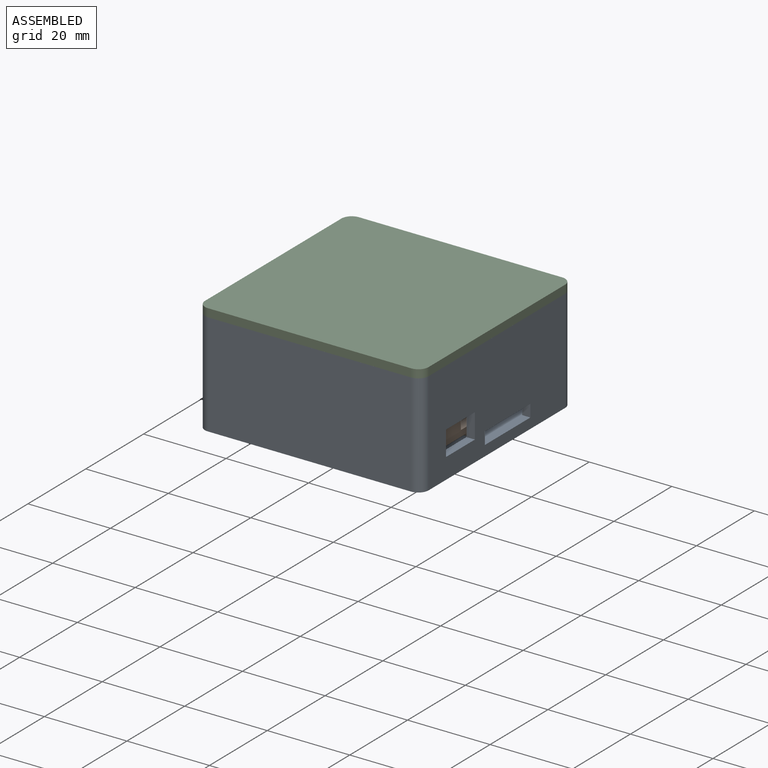
[diagram: assembled view]
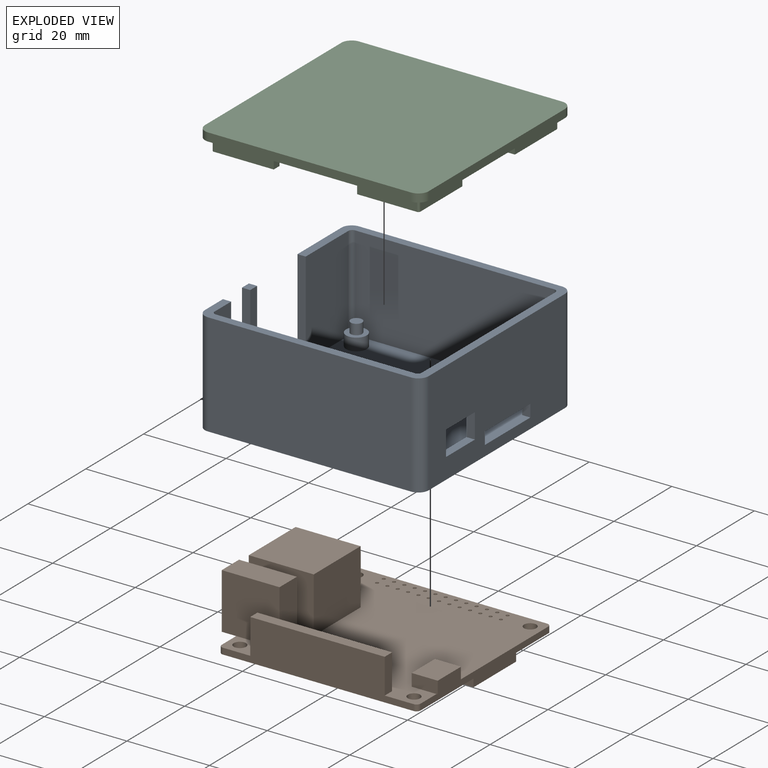
[diagram: exploded view]
GUIDED TOUR — MATED ASSEMBLY (Onshape document 6cd59e404cf89e2baeaaab60, AutoMate assembly 6cd59e404cf89e2baeaaab60_ca87b86a014a17da5134ed17_84a708cdbe08de1a9578e1f8_default)

This assembly has 3 components, labeled P0..P2 below (a component is one placed occurrence of a part; the same part can appear more than once), held together by 2 mates. A mate is a constraint between two components; its type names the relative motion it leaves free:
  FASTENED — locks the two components together rigidly (no relative motion).
Axis/direction vectors are unit vectors and 'through' points are millimeter coordinates, both in the assembly's world frame.

MATES
  1. FASTENED "Fastened 1": P1 <-> P0, direction (0.000, 0.000, -1.000) through (20.48, -18.44, -3.47) mm
  2. FASTENED "Fastened 2": P2 <-> P0, direction (0.000, 0.000, -1.000) through (-27.72, -21.94, 16.53) mm

ASSEMBLY ORDER
  1. P0 — the base component [order heuristic]
  2. P1 — core [order heuristic]
  3. P2 [order verified]
Order-tag legend:
  [order verified] — this step's position reverses a verified removal order: the component was checked to insert without passing through the ones already placed.
  [order heuristic] — the first 2 components form the assembly's core: parts whose collision-free extraction could not be verified, listed in mate-graph order.

Of the 3 components, 1 carries the full construction recipe — the FeatureScript program that regenerates the part's solid from scratch; the rest are supplied as boundary geometry only.
Each toured component is shown spotlighted twice — in the assembled view, then in the exploded view, where a leader line traces a displaced component back to its assembled socket (saturated green if recipe-attached, orange if geometry-only; every other component desaturated gray) — followed by its recipe or geometry summary and the mates that hold it.
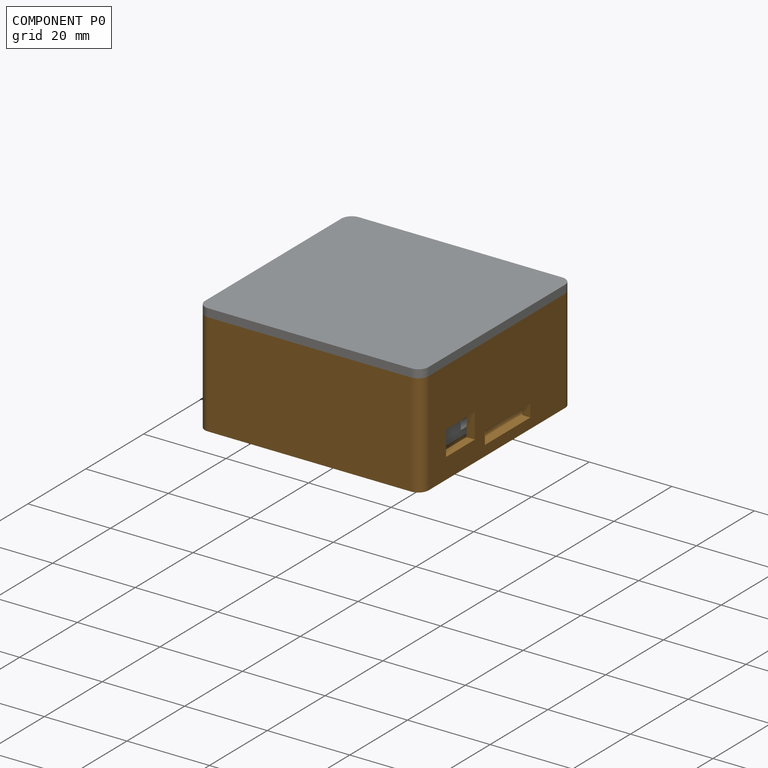
[diagram: component P0 — assembled]
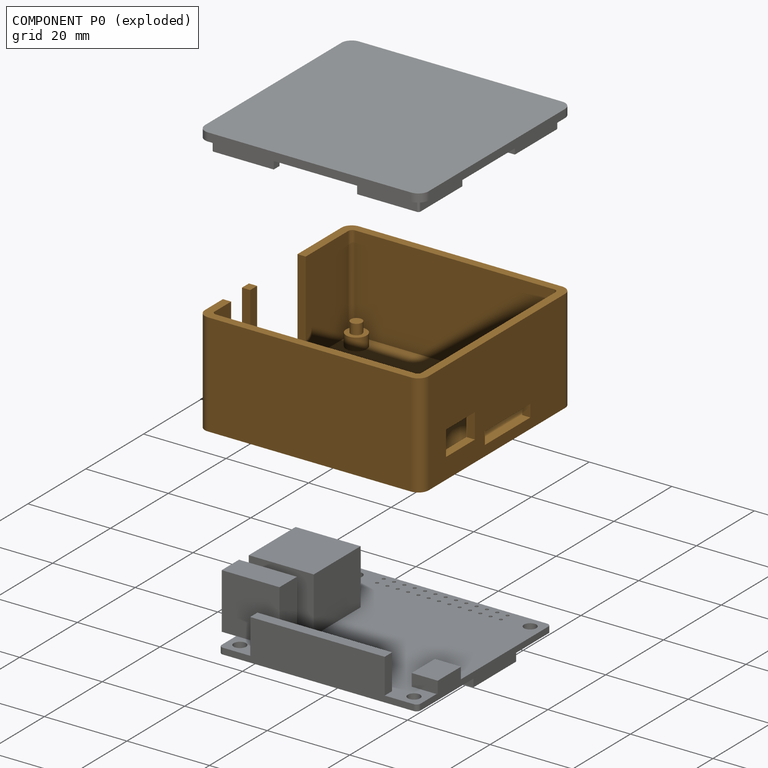
[diagram: component P0 — exploded]
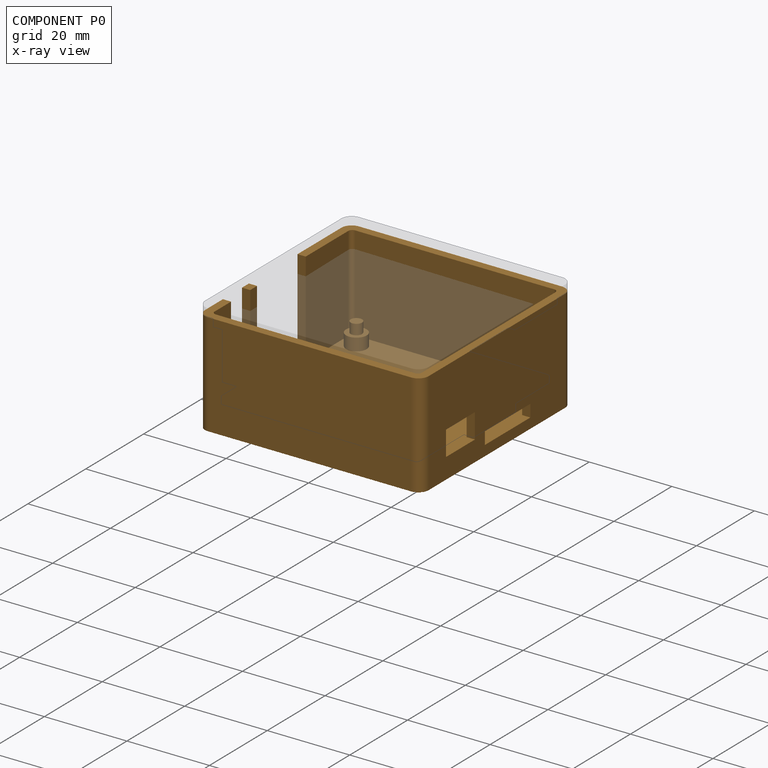
[diagram: component P0 — x-ray view]
COMPONENT P0 — geometry summary (no construction recipe available for this part):
  bounding box: 54.2 x 52.2 x 25.0 mm
  B-rep topology: 1 solid, 50 faces, 244 edges
  volume: 14109 mm^3 (20% of its bounding box)
Held by: FASTENED mate "Fastened 1" to P1; FASTENED mate "Fastened 2" to P2.
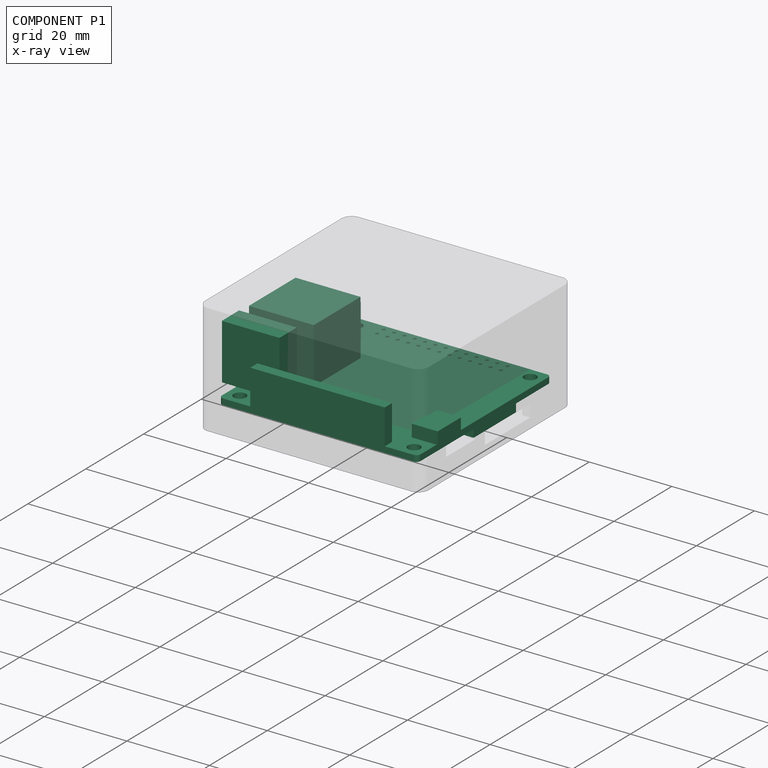
[diagram: component P1 — x-ray view]
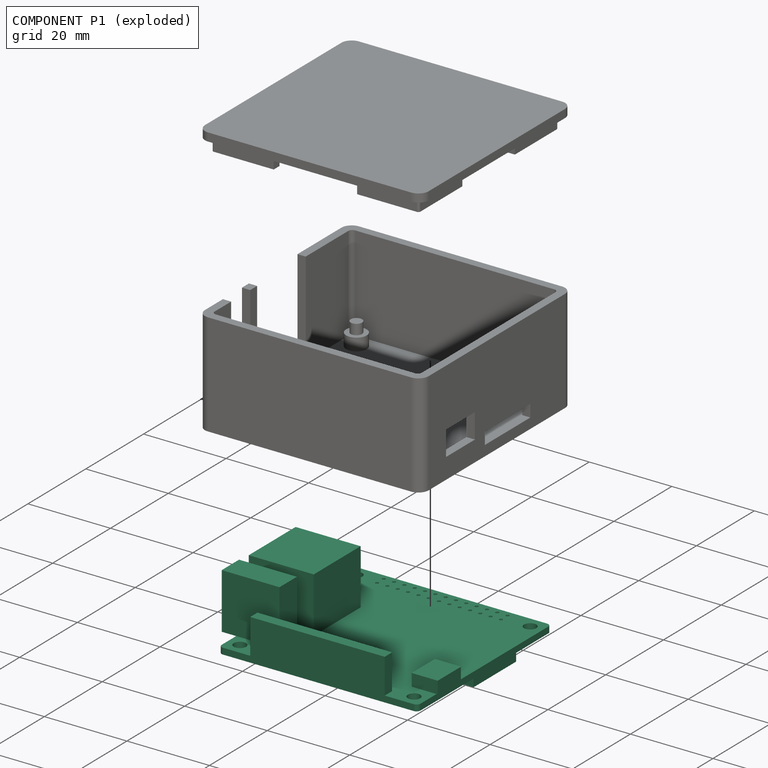
[diagram: component P1 — exploded]
COMPONENT P1 — recipe-attached (CADFS 00581589, mesh-verified: the recipe's output STEP matches this component's geometry to below the mesh-comparison resolution (tessellation chordal tolerance ~0.107 mm)).
Held by: FASTENED mate "Fastened 1" to P0.
Construction recipe (FeatureScript — the CAD program that rebuilds this solid; sketch coordinates are in the units given by the * unit suffixes, e.g. mm):

FeatureScript 1511;
import(path : "onshape/std/geometry.fs", version : "1511.0");
import(path : "onshape/std/common.fs", version : "1511.0");
const mm = millimeter;
const VERTEX = EntityType.VERTEX;
const EDGE = EntityType.EDGE;
const FACE = EntityType.FACE;
const BODY = EntityType.BODY;
function v(x, y){return vector(x, y);}
function OD(order){return orderDisambiguation(order);}
function OSD(set){return originalSetDisambiguation(set);}
function TD(topology){return topologyDisambiguation(topology);}
function TDD(query){return trueDependencyDisambiguation(query);}
function sQuery(a, b, c) {return sketchEntityQuery(a, b, c);}

annotation { "Feature Type Name" : "Feature", "Feature Type Description" : "" }
export const myFeature = defineFeature(function(context is Context, id is Id, definition is map)
    precondition{}
    {
        {
            var Q0;
            Q0=qCreatedBy(makeId("Top.planeOp"),FACE);
            var sketch = newSketch(context, id + "F0", { "sketchPlane" : qUnion([Q0])});
            skLineSegment(sketch, "E0.bottom", {"start": v(23.1, -23.1) * mm, "end": v(-23.1, -23.1) * mm});
            skLineSegment(sketch, "E0.top", {"start": v(23.1, 23.1) * mm, "end": v(-23.1, 23.1) * mm});
            skLineSegment(sketch, "E0.left", {"start": v(24.1, -22.1) * mm, "end": v(24.1, 22.1) * mm});
            skLineSegment(sketch, "E0.right", {"start": v(-24.1, -22.1) * mm, "end": v(-24.1, 22.1) * mm});
            skPoint(sketch, "E0.middle", {"position": v(0, 0) * mm});
            skPoint(sketch, "E1.visualSharp", {"position": v(-24.1, 23.1) * mm});
            skArc(sketch, "E1.filletArc", {"start": v(-23.1, 23.1) * mm, "mid": v(-23.8, 22.8) * mm, "end": v(-24.1, 22.1) * mm});
            skPoint(sketch, "E2.visualSharp", {"position": v(24.1, 23.1) * mm});
            skArc(sketch, "E2.filletArc", {"start": v(24.1, 22.1) * mm, "mid": v(23.8, 22.8) * mm, "end": v(23.1, 23.1) * mm});
            skPoint(sketch, "E3.visualSharp", {"position": v(24.1, -23.1) * mm});
            skArc(sketch, "E3.filletArc", {"start": v(23.1, -23.1) * mm, "mid": v(23.8, -22.8) * mm, "end": v(24.1, -22.1) * mm});
            skPoint(sketch, "E4.visualSharp", {"position": v(-24.1, -23.1) * mm});
            skArc(sketch, "E4.filletArc", {"start": v(-24.1, -22.1) * mm, "mid": v(-23.8, -22.8) * mm, "end": v(-23.1, -23.1) * mm});
            skCircle(sketch, "E5", {"center": v(-21.1, 20.1) * mm, "radius": 1.5 * mm});
            skCircle(sketch, "E6", {"center": v(21.1, 20.1) * mm, "radius": 1.5 * mm});
            skCircle(sketch, "E7", {"center": v(21.1, -20.1) * mm, "radius": 1.5 * mm});
            skCircle(sketch, "E8", {"center": v(-21.1, -20.1) * mm, "radius": 1.5 * mm});
            skSolve(sketch);
        }
        {
            var Q0;
            Q0=makeQuery(id+"F0.imprint","IMPRINT",FACE,{"disambiguationData":[TD([[makeQuery(id+"F0.imprint","IMPRINT",EDGE,{"derivedFrom":sQuery(id+"F0.wireOp",EDGE,"E0.bottom")}),-1.0]])]});
            extrude(context, id + "F1", {"entities" : qUnion([Q0]), "depth" : 1.5 * mm, "offsetDistance" : 25 * mm});
        }
        {
            var Q0;
            Q0=makeQuery(id+"F1.opExtrude","CAP_FACE",FACE,{"disambiguationData":[OSD([sQuery(id+"F0.wireOp",EDGE,"E0.bottom"),sQuery(id+"F0.wireOp",EDGE,"E0.top"),sQuery(id+"F0.wireOp",EDGE,"E0.left"),sQuery(id+"F0.wireOp",EDGE,"E0.right"),sQuery(id+"F0.wireOp",EDGE,"E1.filletArc"),sQuery(id+"F0.wireOp",EDGE,"E2.filletArc"),sQuery(id+"F0.wireOp",EDGE,"E3.filletArc"),sQuery(id+"F0.wireOp",EDGE,"E4.filletArc"),sQuery(id+"F0.wireOp",EDGE,"E5"),sQuery(id+"F0.wireOp",EDGE,"E6"),sQuery(id+"F0.wireOp",EDGE,"E7"),sQuery(id+"F0.wireOp",EDGE,"E8")])],"isStart":false});
            var sketch = newSketch(context, id + "F2", { "sketchPlane" : qUnion([Q0])});
            skLineSegment(sketch, "E9.bottom", {"start": v(-16.5, -23.1) * mm, "end": v(16.1, -23.1) * mm});
            skLineSegment(sketch, "E9.top", {"start": v(-16.5, -20.6) * mm, "end": v(16.1, -20.6) * mm});
            skLineSegment(sketch, "E9.left", {"start": v(-16.5, -23.1) * mm, "end": v(-16.5, -20.6) * mm});
            skLineSegment(sketch, "E9.right", {"start": v(16.1, -23.1) * mm, "end": v(16.1, -20.6) * mm});
            skSolve(sketch);
        }
        {
            var Q0;
            Q0=makeQuery(id+"F2.imprint","IMPRINT",FACE,{"disambiguationData":[TD([[makeQuery(id+"F2.imprint","IMPRINT",EDGE,{"derivedFrom":sQuery(id+"F2.wireOp",EDGE,"E9.bottom")}),-1.0]])]});
            extrude(context, id + "F3", {"entities" : qUnion([Q0]), "operationType" : NewBodyOperationType.ADD, "depth" : 8.5 * mm, "offsetDistance" : 25 * mm});
        }
        {
            var Q0;
            Q0=makeQuery(id+"F1.opExtrude","CAP_FACE",FACE,{"disambiguationData":[OSD([sQuery(id+"F0.wireOp",EDGE,"E0.bottom"),sQuery(id+"F0.wireOp",EDGE,"E0.top"),sQuery(id+"F0.wireOp",EDGE,"E0.left"),sQuery(id+"F0.wireOp",EDGE,"E0.right"),sQuery(id+"F0.wireOp",EDGE,"E1.filletArc"),sQuery(id+"F0.wireOp",EDGE,"E2.filletArc"),sQuery(id+"F0.wireOp",EDGE,"E3.filletArc"),sQuery(id+"F0.wireOp",EDGE,"E4.filletArc"),sQuery(id+"F0.wireOp",EDGE,"E5"),sQuery(id+"F0.wireOp",EDGE,"E6"),sQuery(id+"F0.wireOp",EDGE,"E7"),sQuery(id+"F0.wireOp",EDGE,"E8")])],"isStart":false});
            var sketch = newSketch(context, id + "F4", { "sketchPlane" : qUnion([Q0])});
            skLineSegment(sketch, "E10.bottom", {"start": v(24.1, -8.6) * mm, "end": v(18.1, -8.6) * mm});
            skLineSegment(sketch, "E10.top", {"start": v(24.1, -16.6) * mm, "end": v(18.1, -16.6) * mm});
            skLineSegment(sketch, "E10.left", {"start": v(24.1, -8.6) * mm, "end": v(24.1, -16.6) * mm});
            skLineSegment(sketch, "E10.right", {"start": v(18.1, -8.6) * mm, "end": v(18.1, -16.6) * mm});
            skSolve(sketch);
        }
        {
            var Q0;
            Q0=makeQuery(id+"F4.imprint","IMPRINT",FACE,{"disambiguationData":[TD([[makeQuery(id+"F4.imprint","IMPRINT",EDGE,{"derivedFrom":sQuery(id+"F4.wireOp",EDGE,"E10.bottom")}),1.0]])]});
            extrude(context, id + "F5", {"entities" : qUnion([Q0]), "operationType" : NewBodyOperationType.ADD, "depth" : 3 * mm, "offsetDistance" : 25 * mm});
        }
        {
            var Q0;
            Q0=makeQuery(id+"F5.boolean.opBoolean","MERGE",FACE,{"derivedFrom":[makeQuery(id+"F1.opExtrude","SWEPT_FACE",FACE,{"disambiguationData":[OSD([sQuery(id+"F0.wireOp",EDGE,"E0.left")])]}),makeQuery(id+"F5.opExtrude","SWEPT_FACE",FACE,{"disambiguationData":[OSD([sQuery(id+"F4.wireOp",EDGE,"E10.left")])]})]});
            var sketch = newSketch(context, id + "F6", { "sketchPlane" : qUnion([Q0])});
            skLineSegment(sketch, "E11", {"start": v(-8.6, 1.5) * mm, "end": v(-16.6, 1.5) * mm});
            skSolve(sketch);
        }
        {
            var Q0;
            Q0=makeQuery(id+"F6.imprint","IMPRINT",FACE,{"disambiguationData":[TD([[makeQuery(id+"F6.imprint","IMPRINT",EDGE,{"derivedFrom":sQuery(id+"F6.wireOp",EDGE,"E11")}),-1.0]])]});
            extrude(context, id + "F7", {"entities" : qUnion([Q0]), "operationType" : NewBodyOperationType.ADD, "depth" : 0.3 * mm, "offsetDistance" : 25 * mm});
        }
        {
            var Q0;
            Q0=makeQuery(id+"F1.opExtrude","CAP_FACE",FACE,{"disambiguationData":[OSD([sQuery(id+"F0.wireOp",EDGE,"E0.bottom"),sQuery(id+"F0.wireOp",EDGE,"E0.top"),sQuery(id+"F0.wireOp",EDGE,"E0.left"),sQuery(id+"F0.wireOp",EDGE,"E0.right"),sQuery(id+"F0.wireOp",EDGE,"E1.filletArc"),sQuery(id+"F0.wireOp",EDGE,"E2.filletArc"),sQuery(id+"F0.wireOp",EDGE,"E3.filletArc"),sQuery(id+"F0.wireOp",EDGE,"E4.filletArc"),sQuery(id+"F0.wireOp",EDGE,"E5"),sQuery(id+"F0.wireOp",EDGE,"E6"),sQuery(id+"F0.wireOp",EDGE,"E7"),sQuery(id+"F0.wireOp",EDGE,"E8")])],"isStart":false});
            var sketch = newSketch(context, id + "F8", { "sketchPlane" : qUnion([Q0])});
            skLineSegment(sketch, "E12.bottom", {"start": v(-16.4, 23.1) * mm, "end": v(16.1, 23.1) * mm});
            skLineSegment(sketch, "E12.top", {"start": v(-16.4, 18.1) * mm, "end": v(16.1, 18.1) * mm});
            skLineSegment(sketch, "E12.left", {"start": v(-16.4, 23.1) * mm, "end": v(-16.4, 18.1) * mm});
            skLineSegment(sketch, "E12.right", {"start": v(16.1, 23.1) * mm, "end": v(16.1, 18.1) * mm});
            skCircle(sketch, "E13", {"center": v(-15.5, 21.7) * mm, "radius": 0.4 * mm});
            skCircle(sketch, "E14", {"center": v(-15.5, 19.4) * mm, "radius": 0.4 * mm});
            skCircle(sketch, "E15.1.0.0", {"center": v(-13, 21.7) * mm, "radius": 0.4 * mm});
            skCircle(sketch, "E15.1.0.1", {"center": v(-13, 19.4) * mm, "radius": 0.4 * mm});
            skCircle(sketch, "E15.2.0.0", {"center": v(-10.5, 21.7) * mm, "radius": 0.4 * mm});
            skCircle(sketch, "E15.2.0.1", {"center": v(-10.5, 19.4) * mm, "radius": 0.4 * mm});
            skCircle(sketch, "E15.3.0.0", {"center": v(-8, 21.7) * mm, "radius": 0.4 * mm});
            skCircle(sketch, "E15.3.0.1", {"center": v(-8, 19.4) * mm, "radius": 0.4 * mm});
            skCircle(sketch, "E15.4.0.0", {"center": v(-5.5, 21.7) * mm, "radius": 0.4 * mm});
            skCircle(sketch, "E15.4.0.1", {"center": v(-5.5, 19.4) * mm, "radius": 0.4 * mm});
            skCircle(sketch, "E15.5.0.0", {"center": v(-3, 21.7) * mm, "radius": 0.4 * mm});
            skCircle(sketch, "E15.5.0.1", {"center": v(-3, 19.4) * mm, "radius": 0.4 * mm});
            skCircle(sketch, "E15.6.0.0", {"center": v(-0.5, 21.7) * mm, "radius": 0.4 * mm});
            skCircle(sketch, "E15.6.0.1", {"center": v(-0.5, 19.4) * mm, "radius": 0.4 * mm});
            skCircle(sketch, "E15.7.0.0", {"center": v(2, 21.7) * mm, "radius": 0.4 * mm});
            skCircle(sketch, "E15.7.0.1", {"center": v(2, 19.4) * mm, "radius": 0.4 * mm});
            skCircle(sketch, "E15.8.0.0", {"center": v(4.5, 21.7) * mm, "radius": 0.4 * mm});
            skCircle(sketch, "E15.8.0.1", {"center": v(4.5, 19.4) * mm, "radius": 0.4 * mm});
            skCircle(sketch, "E15.9.0.0", {"center": v(7, 21.7) * mm, "radius": 0.4 * mm});
            skCircle(sketch, "E15.9.0.1", {"center": v(7, 19.4) * mm, "radius": 0.4 * mm});
            skCircle(sketch, "E15.10.0.0", {"center": v(9.5, 21.7) * mm, "radius": 0.4 * mm});
            skCircle(sketch, "E15.10.0.1", {"center": v(9.5, 19.4) * mm, "radius": 0.4 * mm});
            skCircle(sketch, "E15.11.0.0", {"center": v(12, 21.7) * mm, "radius": 0.4 * mm});
            skCircle(sketch, "E15.11.0.1", {"center": v(12, 19.4) * mm, "radius": 0.4 * mm});
            skCircle(sketch, "E15.12.0.0", {"center": v(14.5, 21.7) * mm, "radius": 0.4 * mm});
            skCircle(sketch, "E15.12.0.1", {"center": v(14.5, 19.4) * mm, "radius": 0.4 * mm});
            skLineSegment(sketch, "E15.direction1", {"start": v(-15.5, 19.4) * mm, "end": v(-13, 19.4) * mm, "construction": true});
            skSolve(sketch);
        }
        {
            var Q0;
            Q0=makeQuery(id+"F8.imprint","IMPRINT",FACE,{"disambiguationData":[TD([[makeQuery(id+"F8.imprint","IMPRINT",EDGE,{"derivedFrom":sQuery(id+"F8.wireOp",EDGE,"E15.1.0.0")}),1.0]])]});
            var Q1;
            Q1=makeQuery(id+"F8.imprint","IMPRINT",FACE,{"disambiguationData":[TD([[makeQuery(id+"F8.imprint","IMPRINT",EDGE,{"derivedFrom":sQuery(id+"F8.wireOp",EDGE,"E13")}),1.0]])]});
            var Q2;
            Q2=makeQuery(id+"F8.imprint","IMPRINT",FACE,{"disambiguationData":[TD([[makeQuery(id+"F8.imprint","IMPRINT",EDGE,{"derivedFrom":sQuery(id+"F8.wireOp",EDGE,"E15.2.0.0")}),1.0]])]});
            var Q3;
            Q3=makeQuery(id+"F8.imprint","IMPRINT",FACE,{"disambiguationData":[TD([[makeQuery(id+"F8.imprint","IMPRINT",EDGE,{"derivedFrom":sQuery(id+"F8.wireOp",EDGE,"E15.3.0.0")}),1.0]])]});
            var Q4;
            Q4=makeQuery(id+"F8.imprint","IMPRINT",FACE,{"disambiguationData":[TD([[makeQuery(id+"F8.imprint","IMPRINT",EDGE,{"derivedFrom":sQuery(id+"F8.wireOp",EDGE,"E15.4.0.0")}),1.0]])]});
            var Q5;
            Q5=makeQuery(id+"F8.imprint","IMPRINT",FACE,{"disambiguationData":[TD([[makeQuery(id+"F8.imprint","IMPRINT",EDGE,{"derivedFrom":sQuery(id+"F8.wireOp",EDGE,"E15.5.0.0")}),1.0]])]});
            var Q6;
            Q6=makeQuery(id+"F8.imprint","IMPRINT",FACE,{"disambiguationData":[TD([[makeQuery(id+"F8.imprint","IMPRINT",EDGE,{"derivedFrom":sQuery(id+"F8.wireOp",EDGE,"E15.6.0.0")}),1.0]])]});
            var Q7;
            Q7=makeQuery(id+"F8.imprint","IMPRINT",FACE,{"disambiguationData":[TD([[makeQuery(id+"F8.imprint","IMPRINT",EDGE,{"derivedFrom":sQuery(id+"F8.wireOp",EDGE,"E15.7.0.0")}),1.0]])]});
            var Q8;
            Q8=makeQuery(id+"F8.imprint","IMPRINT",FACE,{"disambiguationData":[TD([[makeQuery(id+"F8.imprint","IMPRINT",EDGE,{"derivedFrom":sQuery(id+"F8.wireOp",EDGE,"E15.8.0.0")}),1.0]])]});
            var Q9;
            Q9=makeQuery(id+"F8.imprint","IMPRINT",FACE,{"disambiguationData":[TD([[makeQuery(id+"F8.imprint","IMPRINT",EDGE,{"derivedFrom":sQuery(id+"F8.wireOp",EDGE,"E15.9.0.0")}),1.0]])]});
            var Q10;
            Q10=makeQuery(id+"F8.imprint","IMPRINT",FACE,{"disambiguationData":[TD([[makeQuery(id+"F8.imprint","IMPRINT",EDGE,{"derivedFrom":sQuery(id+"F8.wireOp",EDGE,"E15.10.0.0")}),1.0]])]});
            var Q11;
            Q11=makeQuery(id+"F8.imprint","IMPRINT",FACE,{"disambiguationData":[TD([[makeQuery(id+"F8.imprint","IMPRINT",EDGE,{"derivedFrom":sQuery(id+"F8.wireOp",EDGE,"E15.11.0.0")}),1.0]])]});
            var Q12;
            Q12=makeQuery(id+"F8.imprint","IMPRINT",FACE,{"disambiguationData":[TD([[makeQuery(id+"F8.imprint","IMPRINT",EDGE,{"derivedFrom":sQuery(id+"F8.wireOp",EDGE,"E15.12.0.0")}),1.0]])]});
            var Q13;
            Q13=makeQuery(id+"F8.imprint","IMPRINT",FACE,{"disambiguationData":[TD([[makeQuery(id+"F8.imprint","IMPRINT",EDGE,{"derivedFrom":sQuery(id+"F8.wireOp",EDGE,"E15.12.0.1")}),1.0]])]});
            var Q14;
            Q14=makeQuery(id+"F8.imprint","IMPRINT",FACE,{"disambiguationData":[TD([[makeQuery(id+"F8.imprint","IMPRINT",EDGE,{"derivedFrom":sQuery(id+"F8.wireOp",EDGE,"E15.11.0.1")}),1.0]])]});
            var Q15;
            Q15=makeQuery(id+"F8.imprint","IMPRINT",FACE,{"disambiguationData":[TD([[makeQuery(id+"F8.imprint","IMPRINT",EDGE,{"derivedFrom":sQuery(id+"F8.wireOp",EDGE,"E15.10.0.1")}),1.0]])]});
            var Q16;
            Q16=makeQuery(id+"F8.imprint","IMPRINT",FACE,{"disambiguationData":[TD([[makeQuery(id+"F8.imprint","IMPRINT",EDGE,{"derivedFrom":sQuery(id+"F8.wireOp",EDGE,"E15.9.0.1")}),1.0]])]});
            var Q17;
            Q17=makeQuery(id+"F8.imprint","IMPRINT",FACE,{"disambiguationData":[TD([[makeQuery(id+"F8.imprint","IMPRINT",EDGE,{"derivedFrom":sQuery(id+"F8.wireOp",EDGE,"E15.8.0.1")}),1.0]])]});
            var Q18;
            Q18=makeQuery(id+"F8.imprint","IMPRINT",FACE,{"disambiguationData":[TD([[makeQuery(id+"F8.imprint","IMPRINT",EDGE,{"derivedFrom":sQuery(id+"F8.wireOp",EDGE,"E15.7.0.1")}),1.0]])]});
            var Q19;
            Q19=makeQuery(id+"F8.imprint","IMPRINT",FACE,{"disambiguationData":[TD([[makeQuery(id+"F8.imprint","IMPRINT",EDGE,{"derivedFrom":sQuery(id+"F8.wireOp",EDGE,"E15.6.0.1")}),1.0]])]});
            var Q20;
            Q20=makeQuery(id+"F8.imprint","IMPRINT",FACE,{"disambiguationData":[TD([[makeQuery(id+"F8.imprint","IMPRINT",EDGE,{"derivedFrom":sQuery(id+"F8.wireOp",EDGE,"E15.5.0.1")}),1.0]])]});
            var Q21;
            Q21=makeQuery(id+"F8.imprint","IMPRINT",FACE,{"disambiguationData":[TD([[makeQuery(id+"F8.imprint","IMPRINT",EDGE,{"derivedFrom":sQuery(id+"F8.wireOp",EDGE,"E15.4.0.1")}),1.0]])]});
            var Q22;
            Q22=makeQuery(id+"F8.imprint","IMPRINT",FACE,{"disambiguationData":[TD([[makeQuery(id+"F8.imprint","IMPRINT",EDGE,{"derivedFrom":sQuery(id+"F8.wireOp",EDGE,"E15.3.0.1")}),1.0]])]});
            var Q23;
            Q23=makeQuery(id+"F8.imprint","IMPRINT",FACE,{"disambiguationData":[TD([[makeQuery(id+"F8.imprint","IMPRINT",EDGE,{"derivedFrom":sQuery(id+"F8.wireOp",EDGE,"E15.2.0.1")}),1.0]])]});
            var Q24;
            Q24=makeQuery(id+"F8.imprint","IMPRINT",FACE,{"disambiguationData":[TD([[makeQuery(id+"F8.imprint","IMPRINT",EDGE,{"derivedFrom":sQuery(id+"F8.wireOp",EDGE,"E15.1.0.1")}),1.0]])]});
            var Q25;
            Q25=makeQuery(id+"F8.imprint","IMPRINT",FACE,{"disambiguationData":[TD([[makeQuery(id+"F8.imprint","IMPRINT",EDGE,{"derivedFrom":sQuery(id+"F8.wireOp",EDGE,"E14")}),1.0]])]});
            extrude(context, id + "F9", {"entities" : qUnion([Q0, Q1, Q2, Q3, Q4, Q5, Q6, Q7, Q8, Q9, Q10, Q11, Q12, Q13, Q14, Q15, Q16, Q17, Q18, Q19, Q20, Q21, Q22, Q23, Q24, Q25]), "operationType" : NewBodyOperationType.REMOVE, "endBound" : BoundingType.UP_TO_NEXT, "oppositeDirection" : true, "depth" : 25 * mm, "offsetDistance" : 25 * mm});
        }
        {
            var Q0;
            Q0=makeQuery(id+"F1.opExtrude","CAP_FACE",FACE,{"disambiguationData":[OSD([sQuery(id+"F0.wireOp",EDGE,"E0.bottom"),sQuery(id+"F0.wireOp",EDGE,"E0.top"),sQuery(id+"F0.wireOp",EDGE,"E0.left"),sQuery(id+"F0.wireOp",EDGE,"E0.right"),sQuery(id+"F0.wireOp",EDGE,"E1.filletArc"),sQuery(id+"F0.wireOp",EDGE,"E2.filletArc"),sQuery(id+"F0.wireOp",EDGE,"E3.filletArc"),sQuery(id+"F0.wireOp",EDGE,"E4.filletArc"),sQuery(id+"F0.wireOp",EDGE,"E5"),sQuery(id+"F0.wireOp",EDGE,"E6"),sQuery(id+"F0.wireOp",EDGE,"E7"),sQuery(id+"F0.wireOp",EDGE,"E8")])],"isStart":false});
            var sketch = newSketch(context, id + "F10", { "sketchPlane" : qUnion([Q0])});
            skLineSegment(sketch, "E16.bottom", {"start": v(-24.1, 14.6) * mm, "end": v(-16.1, 14.6) * mm});
            skLineSegment(sketch, "E16.top", {"start": v(-24.1, 12.1) * mm, "end": v(-16.1, 12.1) * mm});
            skLineSegment(sketch, "E16.left", {"start": v(-24.1, 14.6) * mm, "end": v(-24.1, 12.1) * mm});
            skLineSegment(sketch, "E16.right", {"start": v(-16.1, 14.6) * mm, "end": v(-16.1, 12.1) * mm});
            skSolve(sketch);
        }
        {
            var Q0;
            Q0 = qSketchRegion(id + "F10", true);
            extrude(context, id + "F11", {"entities" : qUnion([Q0]), "operationType" : NewBodyOperationType.ADD, "depth" : 8.5 * mm, "offsetDistance" : 25 * mm});
        }
        {
            var Q0;
            Q0=makeQuery(id+"F1.opExtrude","CAP_FACE",FACE,{"disambiguationData":[OSD([sQuery(id+"F0.wireOp",EDGE,"E0.bottom"),sQuery(id+"F0.wireOp",EDGE,"E0.top"),sQuery(id+"F0.wireOp",EDGE,"E0.left"),sQuery(id+"F0.wireOp",EDGE,"E0.right"),sQuery(id+"F0.wireOp",EDGE,"E1.filletArc"),sQuery(id+"F0.wireOp",EDGE,"E2.filletArc"),sQuery(id+"F0.wireOp",EDGE,"E3.filletArc"),sQuery(id+"F0.wireOp",EDGE,"E4.filletArc"),sQuery(id+"F0.wireOp",EDGE,"E5"),sQuery(id+"F0.wireOp",EDGE,"E6"),sQuery(id+"F0.wireOp",EDGE,"E7"),sQuery(id+"F0.wireOp",EDGE,"E8")])],"isStart":false});
            var sketch = newSketch(context, id + "F12", { "sketchPlane" : qUnion([Q0])});
            skLineSegment(sketch, "E17.bottom", {"start": v(-27.35, 8.1) * mm, "end": v(-11.6, 8.1) * mm});
            skLineSegment(sketch, "E17.top", {"start": v(-27.35, -8.1) * mm, "end": v(-11.6, -8.1) * mm});
            skLineSegment(sketch, "E17.left", {"start": v(-27.35, 8.1) * mm, "end": v(-27.35, -8.1) * mm});
            skLineSegment(sketch, "E17.right", {"start": v(-11.6, 8.1) * mm, "end": v(-11.6, -8.1) * mm});
            skSolve(sketch);
        }
        {
            var Q0;
            {var subQ0=sQuery(id+"F12.wireOp",EDGE,"E17.left");Q0=makeQuery(id+"F12.imprint","IMPRINT",FACE,{"disambiguationData":[TD([[makeQuery(id+"F12.imprint","IMPRINT",EDGE,{"derivedFrom":subQ0}),1.0]])]});}
            var Q1;
            {var subQ0=sQuery(id+"F12.wireOp",EDGE,"E17.right");Q1=makeQuery(id+"F12.imprint","IMPRINT",FACE,{"disambiguationData":[TD([[makeQuery(id+"F12.imprint","IMPRINT",EDGE,{"derivedFrom":subQ0}),-1.0]])]});}
            extrude(context, id + "F13", {"entities" : qUnion([Q0, Q1]), "operationType" : NewBodyOperationType.ADD, "depth" : 13.4 * mm, "offsetDistance" : 25 * mm});
        }
        {
            var Q0;
            Q0=makeQuery(id+"F1.opExtrude","CAP_FACE",FACE,{"disambiguationData":[OSD([sQuery(id+"F0.wireOp",EDGE,"E0.bottom"),sQuery(id+"F0.wireOp",EDGE,"E0.top"),sQuery(id+"F0.wireOp",EDGE,"E0.left"),sQuery(id+"F0.wireOp",EDGE,"E0.right"),sQuery(id+"F0.wireOp",EDGE,"E1.filletArc"),sQuery(id+"F0.wireOp",EDGE,"E2.filletArc"),sQuery(id+"F0.wireOp",EDGE,"E3.filletArc"),sQuery(id+"F0.wireOp",EDGE,"E4.filletArc"),sQuery(id+"F0.wireOp",EDGE,"E5"),sQuery(id+"F0.wireOp",EDGE,"E6"),sQuery(id+"F0.wireOp",EDGE,"E7"),sQuery(id+"F0.wireOp",EDGE,"E8")])],"isStart":false});
            var sketch = newSketch(context, id + "F14", { "sketchPlane" : qUnion([Q0])});
            skLineSegment(sketch, "E18.bottom", {"start": v(-13.6, -11.1) * mm, "end": v(-27.6, -11.1) * mm});
            skLineSegment(sketch, "E18.top", {"start": v(-13.6, -17.1) * mm, "end": v(-27.6, -17.1) * mm});
            skLineSegment(sketch, "E18.left", {"start": v(-13.6, -11.1) * mm, "end": v(-13.6, -17.1) * mm});
            skLineSegment(sketch, "E18.right", {"start": v(-27.6, -11.1) * mm, "end": v(-27.6, -17.1) * mm});
            skSolve(sketch);
        }
        {
            var Q0;
            {var subQ0=sQuery(id+"F14.wireOp",EDGE,"E18.right");Q0=makeQuery(id+"F14.imprint","IMPRINT",FACE,{"disambiguationData":[TD([[makeQuery(id+"F14.imprint","IMPRINT",EDGE,{"derivedFrom":subQ0}),1.0]])]});}
            var Q1;
            {var subQ0=sQuery(id+"F14.wireOp",EDGE,"E18.left");Q1=makeQuery(id+"F14.imprint","IMPRINT",FACE,{"disambiguationData":[TD([[makeQuery(id+"F14.imprint","IMPRINT",EDGE,{"derivedFrom":subQ0}),-1.0]])]});}
            extrude(context, id + "F15", {"entities" : qUnion([Q0, Q1]), "operationType" : NewBodyOperationType.ADD, "depth" : 13.5 * mm, "offsetDistance" : 25 * mm});
        }
        {
            var Q0;
            Q0=makeQuery(id+"F1.opExtrude","CAP_FACE",FACE,{"disambiguationData":[OSD([sQuery(id+"F0.wireOp",EDGE,"E0.bottom"),sQuery(id+"F0.wireOp",EDGE,"E0.top"),sQuery(id+"F0.wireOp",EDGE,"E0.left"),sQuery(id+"F0.wireOp",EDGE,"E0.right"),sQuery(id+"F0.wireOp",EDGE,"E1.filletArc"),sQuery(id+"F0.wireOp",EDGE,"E2.filletArc"),sQuery(id+"F0.wireOp",EDGE,"E3.filletArc"),sQuery(id+"F0.wireOp",EDGE,"E4.filletArc"),sQuery(id+"F0.wireOp",EDGE,"E5"),sQuery(id+"F0.wireOp",EDGE,"E6"),sQuery(id+"F0.wireOp",EDGE,"E7"),sQuery(id+"F0.wireOp",EDGE,"E8")])],"isStart":true});
            var sketch = newSketch(context, id + "F16", { "sketchPlane" : qUnion([Q0])});
            skLineSegment(sketch, "E19.bottom", {"start": v(9.5, 3.65) * mm, "end": v(24.1, 3.65) * mm});
            skLineSegment(sketch, "E19.top", {"start": v(9.5, -11.1) * mm, "end": v(24.1, -11.1) * mm});
            skLineSegment(sketch, "E19.left", {"start": v(9.5, 3.65) * mm, "end": v(9.5, -11.1) * mm});
            skLineSegment(sketch, "E19.right", {"start": v(24.1, 3.65) * mm, "end": v(24.1, -11.1) * mm});
            skSolve(sketch);
        }
        {
            var Q0;
            Q0=makeQuery(id+"F16.imprint","IMPRINT",FACE,{"disambiguationData":[TD([[makeQuery(id+"F16.imprint","IMPRINT",EDGE,{"derivedFrom":sQuery(id+"F16.wireOp",EDGE,"E19.bottom")}),-1.0]])]});
            extrude(context, id + "F17", {"entities" : qUnion([Q0]), "operationType" : NewBodyOperationType.ADD, "depth" : 2 * mm, "offsetDistance" : 25 * mm});
        }
        {
            var Q0;
            Q0=makeQuery(id+"F17.boolean.opBoolean","MERGE",FACE,{"derivedFrom":[makeQuery(id+"F5.boolean.opBoolean","MERGE",FACE,{"derivedFrom":[makeQuery(id+"F1.opExtrude","SWEPT_FACE",FACE,{"disambiguationData":[OSD([sQuery(id+"F0.wireOp",EDGE,"E0.left")])]}),makeQuery(id+"F5.opExtrude","SWEPT_FACE",FACE,{"disambiguationData":[OSD([sQuery(id+"F4.wireOp",EDGE,"E10.left")])]})]}),makeQuery(id+"F17.opExtrude","SWEPT_FACE",FACE,{"disambiguationData":[OSD([sQuery(id+"F16.wireOp",EDGE,"E19.right")])]})]});
            var sketch = newSketch(context, id + "F18", { "sketchPlane" : qUnion([Q0])});
            skLineSegment(sketch, "E20", {"start": v(-3.65, 0) * mm, "end": v(11.1, 0) * mm});
            skSolve(sketch);
        }
        {
            var Q0;
            Q0=makeQuery(id+"F18.imprint","IMPRINT",FACE,{"disambiguationData":[TD([[makeQuery(id+"F18.imprint","IMPRINT",EDGE,{"derivedFrom":sQuery(id+"F18.wireOp",EDGE,"E20")}),-1.0]])]});
            extrude(context, id + "F19", {"entities" : qUnion([Q0]), "operationType" : NewBodyOperationType.REMOVE, "oppositeDirection" : true, "depth" : 0.1 * mm, "offsetDistance" : 25 * mm});
        }
    });
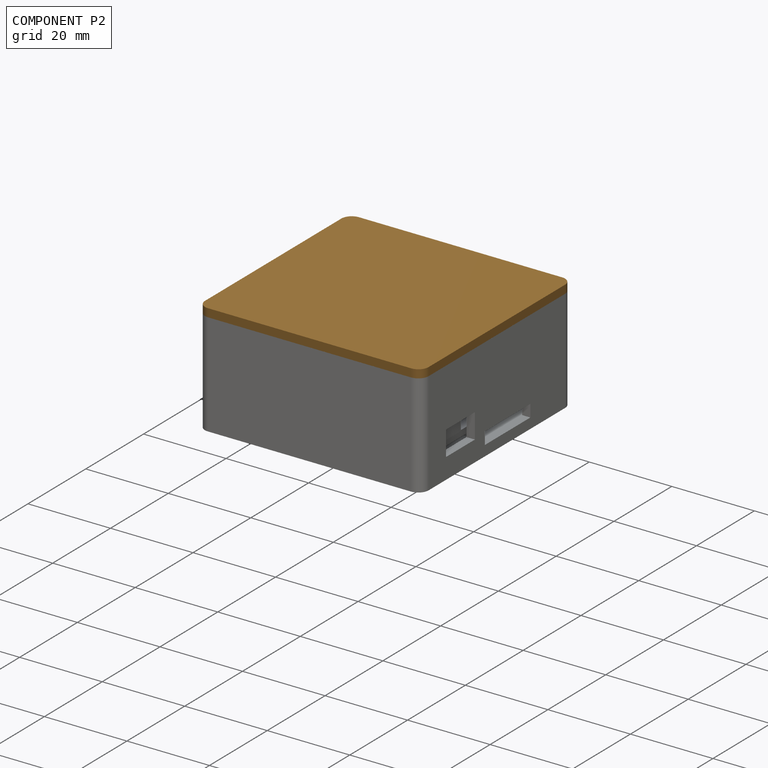
[diagram: component P2 — assembled]
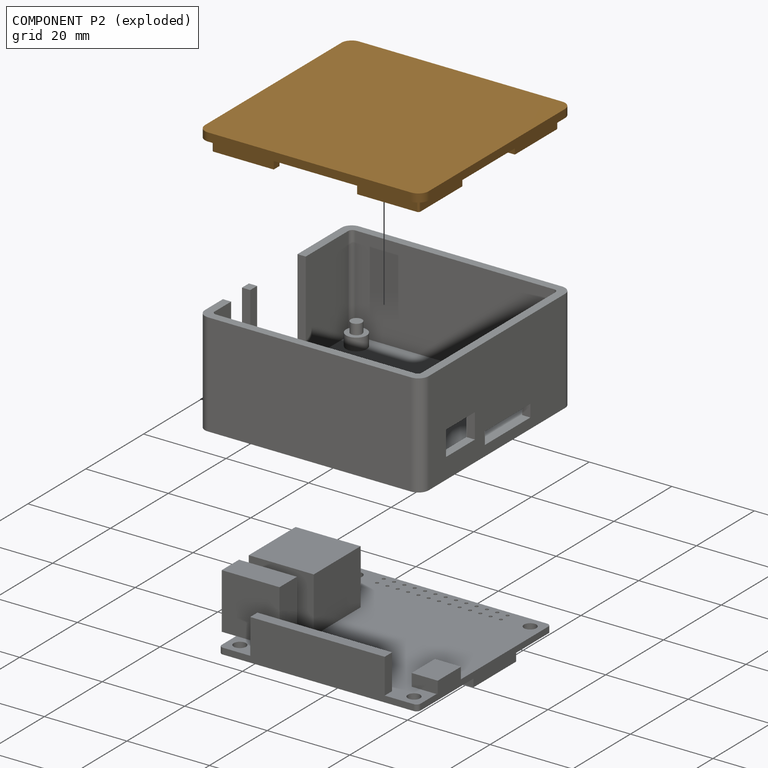
[diagram: component P2 — exploded]
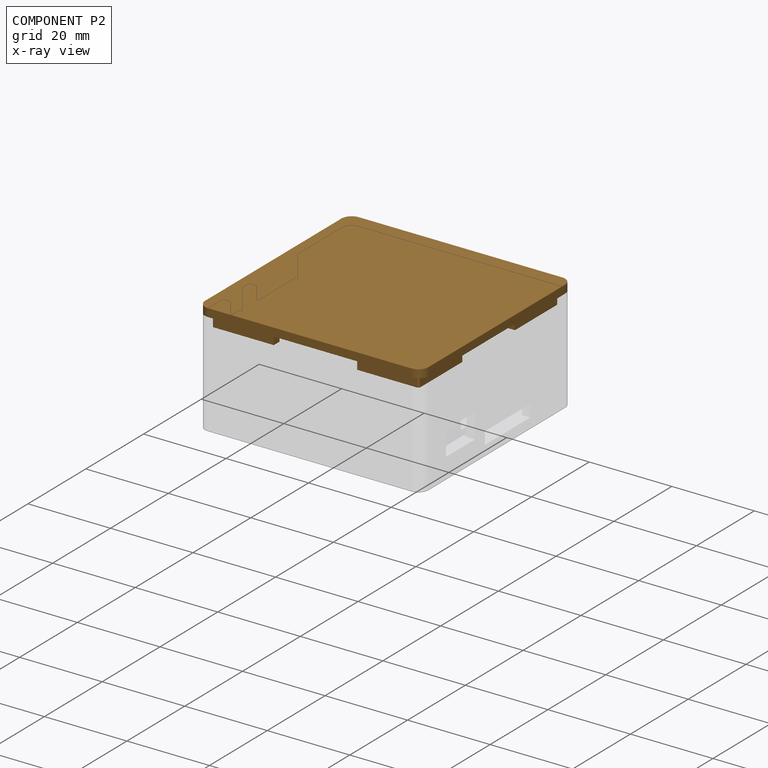
[diagram: component P2 — x-ray view]
COMPONENT P2 — geometry summary (no construction recipe available for this part):
  bounding box: 54.2 x 52.2 x 5.0 mm
  B-rep topology: 1 solid, 40 faces, 216 edges
  volume: 6580 mm^3 (47% of its bounding box)
Held by: FASTENED mate "Fastened 2" to P0.
PROVENANCE & LICENSES
Assembly (occurrences, transforms, mates, per-part STEP geometry): AutoMate dataset, Zenodo record 7776208, CC0.
Construction recipes: CADFS (HuggingFace VladPyatov/CADFS, CC-BY-4.0, layered over the ABC dataset), FeatureScript reconstruction programs keyed by ABC model id.
Join: ABC meta listings map ABC model id -> Onshape documentId; within a shared document, parts are matched by geometric signature (bounding-box dims + volume at 0.1% relative tolerance, exact B-rep face/solid counts).
Verification: 1 of this assembly's 3 components carries a recipe attachment, and every attachment is mesh-verified: the CADFS STEP and the AutoMate member STEP were compared as meshes in their shared local frame (symmetric sampled-point-to-mesh distance); worst across the 1 attachment: below the mesh-comparison resolution (tessellation chordal tolerance ~0.107 mm) on a 72 mm part.
Renders: orthographic iso camera (az 35 / el 25); the floor grid conveys scale (grid pitch printed in each image; no ruler). In the exploded view each component is displaced by its stored offset vector: the offsets alone carry the explosion direction (mate normal/axis signs are not orientation cues and do not encode it), and separation distances are assigned per mate-chain, not proportionally to assembly-order depth.
